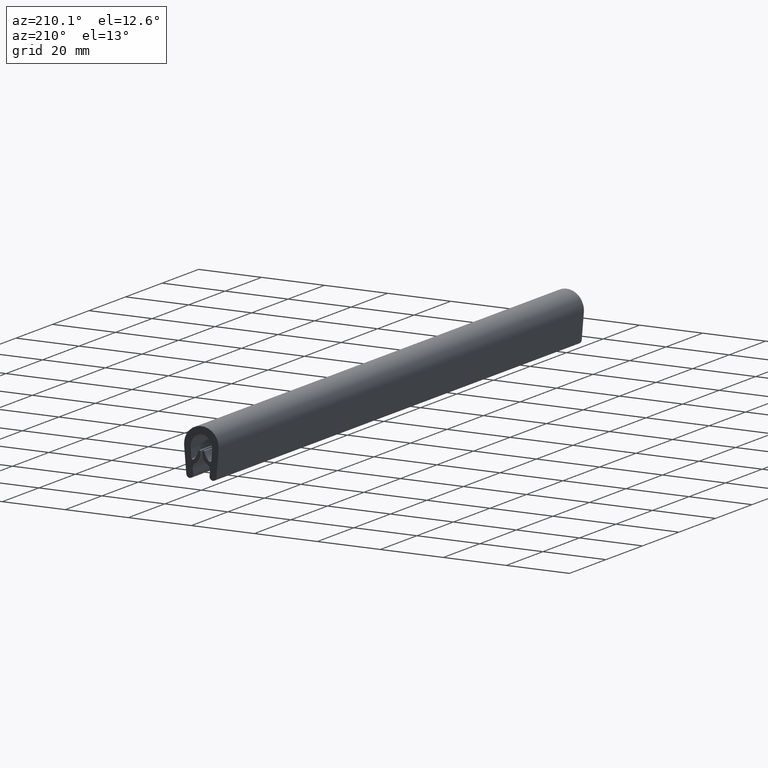
[diagram: clean part render]
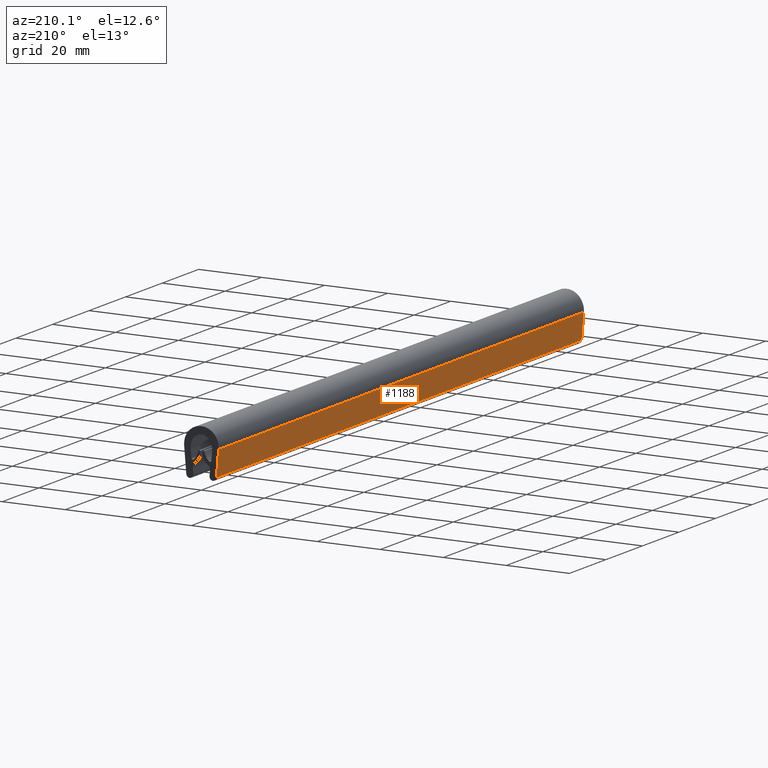
[diagram: same view with one face highlighted and labeled with its STEP entity id]
A machine part, auxiliary view. The second image highlights one B-rep face of the part: STEP entity #1188.
In plain terms, the highlighted face is a freeform B-spline surface patch.
Its self-contained STEP definition (entity closure, byte-faithful):
#777=CARTESIAN_POINT('',(-5.474783945414960,0.0,-5.967107423224380));
#778=VERTEX_POINT('',#777);
#798=CARTESIAN_POINT('',(-4.782680216882060,0.0,-13.994669246972119));
#799=VERTEX_POINT('',#798);
#800=CARTESIAN_POINT('',(-5.474783945414960,0.0,-5.967107423224380));
#801=CARTESIAN_POINT('',(-4.782680216882060,0.0,-13.994669246972119));
#802=QUASI_UNIFORM_CURVE('',1,(#800,#801),.UNSPECIFIED.,.F.,.U.);
#803=EDGE_CURVE('',#778,#799,#802,.T.);
#849=CARTESIAN_POINT('',(-4.782680216882060,200.0,-13.994669246972119));
#850=VERTEX_POINT('',#849);
#865=CARTESIAN_POINT('',(-5.474783945414960,200.0,-5.967107423224380));
#866=VERTEX_POINT('',#865);
#867=CARTESIAN_POINT('',(-5.474783945414960,200.0,-5.967107423224380));
#868=CARTESIAN_POINT('',(-4.782680216882060,200.0,-13.994669246972119));
#869=QUASI_UNIFORM_CURVE('',1,(#867,#868),.UNSPECIFIED.,.F.,.U.);
#870=EDGE_CURVE('',#866,#850,#869,.T.);
#1159=CARTESIAN_POINT('',(-4.782680216882060,200.0,-13.994669246972119));
#1160=CARTESIAN_POINT('',(-4.782680216882060,0.0,-13.994669246972119));
#1161=QUASI_UNIFORM_CURVE('',1,(#1159,#1160),.UNSPECIFIED.,.F.,.U.);
#1162=EDGE_CURVE('',#850,#799,#1161,.T.);
#1173=CARTESIAN_POINT('',(-4.748109636983269,-9.989999612361183,-14.395645944509351));
#1174=CARTESIAN_POINT('',(-5.509354543877399,-9.989999612361183,-5.566130510371166));
#1175=CARTESIAN_POINT('',(-4.748109636983269,209.990004976779200,-14.395645944509351));
#1176=CARTESIAN_POINT('',(-5.509354543877399,209.990004976779200,-5.566130510371166));
#1177=B_SPLINE_SURFACE_WITH_KNOTS('',1,1,((#1173,#1175),(#1174,#1176)),.UNSPECIFIED.,.F.,.F.,.U.,(2,2),(2,2),(0.0,8.862270398151743),(0.0,219.980004589140410),.UNSPECIFIED.);
#1178=ORIENTED_EDGE('',*,*,#803,.F.);
#1179=CARTESIAN_POINT('',(-5.474783945414960,200.0,-5.967107423224380));
#1180=CARTESIAN_POINT('',(-5.474783945414960,0.0,-5.967107423224380));
#1181=QUASI_UNIFORM_CURVE('',1,(#1179,#1180),.UNSPECIFIED.,.F.,.U.);
#1182=EDGE_CURVE('',#866,#778,#1181,.T.);
#1183=ORIENTED_EDGE('',*,*,#1182,.F.);
#1184=ORIENTED_EDGE('',*,*,#870,.T.);
#1185=ORIENTED_EDGE('',*,*,#1162,.T.);
#1186=EDGE_LOOP('',(#1178,#1183,#1184,#1185));
#1187=FACE_OUTER_BOUND('',#1186,.T.);
#1188=ADVANCED_FACE('',(#1187),#1177,.T.);